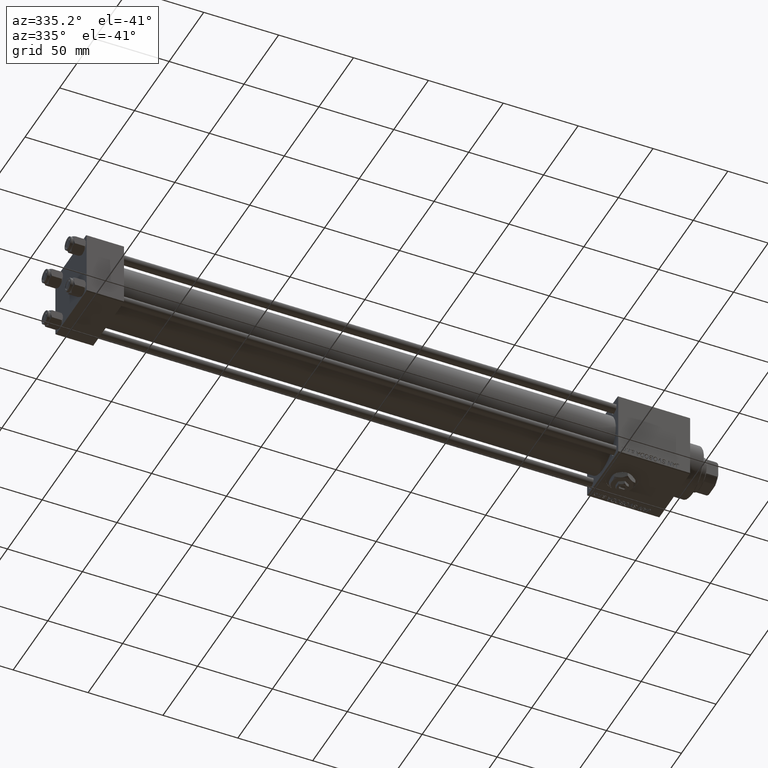
[diagram: clean part render]
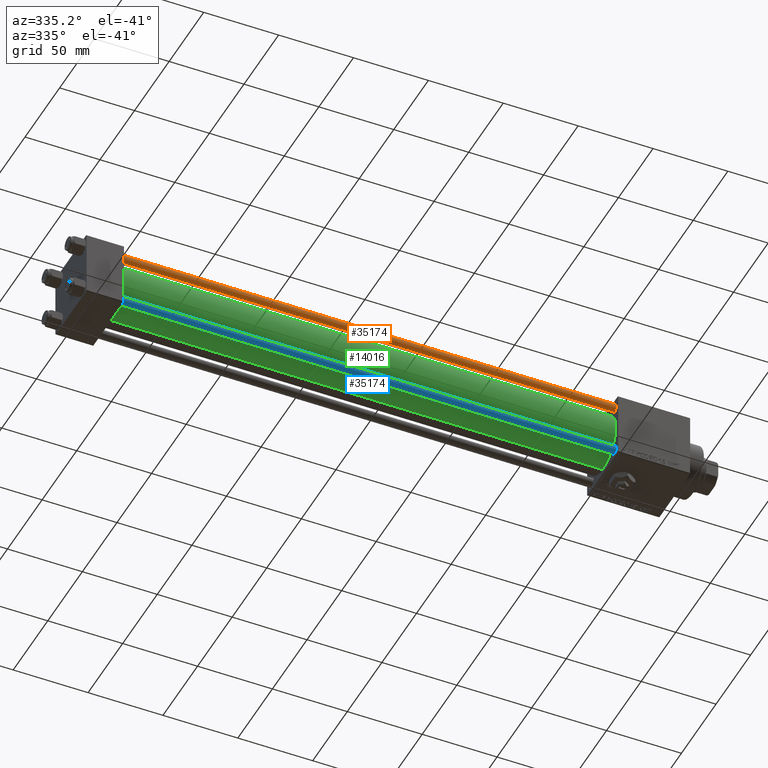
[diagram: same view with three faces highlighted in distinct colors, each labeled with its STEP entity id]
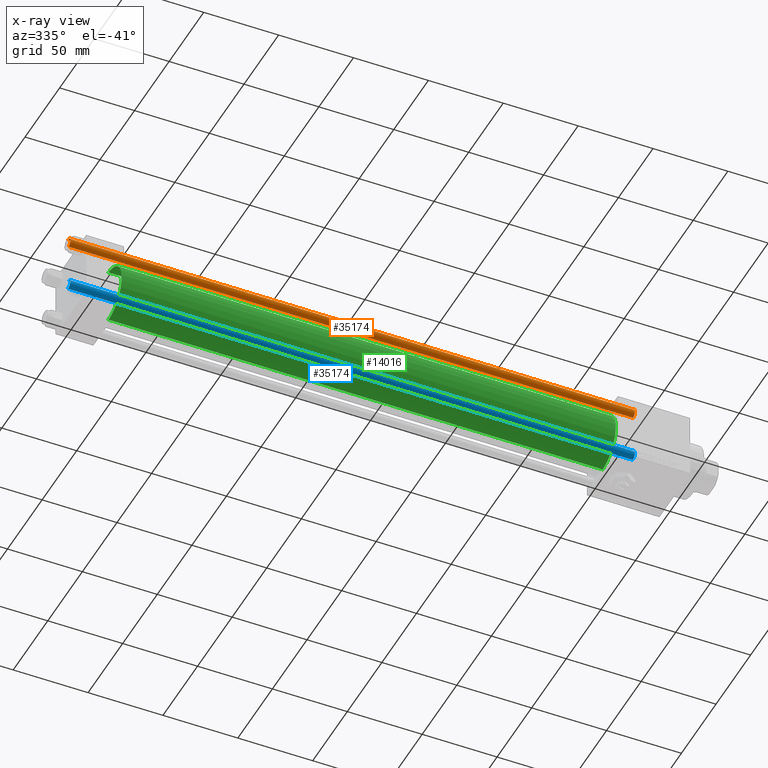
[diagram: x-ray of the same camera — body ghosted, the three highlighted faces saturated]
A machine part, auxiliary view with three faces highlighted in distinct colors.
The next image is the same camera in x-ray (body ghosted, the three faces saturated) — at least one of them is partly hidden behind the body in this view.
Their STEP definitions:

[orange] entity #35174 — the highlighted cylindrical surface (edge-blend (fillet) strip) has radius 3 mm, axis along (1, 0, -0).
#162 = ORIENTED_EDGE ( 'NONE', *, *, #33673, .T. ) ;
#464 = DIRECTION ( 'NONE',  ( -0.000000000000000000, -0.000000000000000000, -1.000000000000000000 ) ) ;
#3389 = EDGE_CURVE ( 'NONE', #10815, #40683, #31391, .T. ) ;
#3448 = CARTESIAN_POINT ( 'NONE',  ( -3.000000000000000444, 0.000000000000000000, 377.5000000000000000 ) ) ;
#6646 = ORIENTED_EDGE ( 'NONE', *, *, #22114, .T. ) ;
#9624 = EDGE_CURVE ( 'NONE', #17522, #40683, #15132, .T. ) ;
#10815 = VERTEX_POINT ( 'NONE', #18515 ) ;
#10945 = DIRECTION ( 'NONE',  ( -0.000000000000000000, -0.000000000000000000, -1.000000000000000000 ) ) ;
#12536 = ORIENTED_EDGE ( 'NONE', *, *, #9624, .F. ) ;
#12786 = CARTESIAN_POINT ( 'NONE',  ( -3.000000000000000444, 0.000000000000000000, 0.5000000000000004441 ) ) ;
#13234 = DIRECTION ( 'NONE',  ( 1.000000000000000000, 0.000000000000000000, 0.000000000000000000 ) ) ;
#15132 = LINE ( 'NONE', #46871, #26043 ) ;
#16107 = VERTEX_POINT ( 'NONE', #50154 ) ;
#16583 = VECTOR ( 'NONE', #464, 1000.000000000000000 ) ;
#17522 = VERTEX_POINT ( 'NONE', #3448 ) ;
#18515 = CARTESIAN_POINT ( 'NONE',  ( 3.000000000000000444, 3.673940397442060361E-16, 0.5000000000000004441 ) ) ;
#19437 = DIRECTION ( 'NONE',  ( -0.000000000000000000, -0.000000000000000000, -1.000000000000000000 ) ) ;
#19547 = CARTESIAN_POINT ( 'NONE',  ( 0.000000000000000000, 0.000000000000000000, 0.5000000000000004441 ) ) ;
#22114 = EDGE_CURVE ( 'NONE', #17522, #16107, #33904, .T. ) ;
#22603 = CARTESIAN_POINT ( 'NONE',  ( 0.000000000000000000, 0.000000000000000000, 378.0000000000000000 ) ) ;
#26043 = VECTOR ( 'NONE', #10945, 1000.000000000000000 ) ;
#27056 = CYLINDRICAL_SURFACE ( 'NONE', #39247, 3.000000000000000444 ) ;
#31391 = CIRCLE ( 'NONE', #33913, 3.000000000000000444 ) ;
#32132 = DIRECTION ( 'NONE',  ( 1.000000000000000000, 0.000000000000000000, 0.000000000000000000 ) ) ;
#33175 = CARTESIAN_POINT ( 'NONE',  ( 0.000000000000000000, 0.000000000000000000, 377.5000000000000000 ) ) ;
#33673 = EDGE_CURVE ( 'NONE', #16107, #10815, #39369, .T. ) ;
#33904 = CIRCLE ( 'NONE', #36418, 3.000000000000000444 ) ;
#33913 = AXIS2_PLACEMENT_3D ( 'NONE', #19547, #35552, #32132 ) ;
#35174 = ADVANCED_FACE ( 'NONE', ( #46970 ), #27056, .T. ) ;
#35552 = DIRECTION ( 'NONE',  ( -0.000000000000000000, -0.000000000000000000, 1.000000000000000000 ) ) ;
#36412 = CARTESIAN_POINT ( 'NONE',  ( 3.000000000000000444, 3.673940397442060361E-16, 378.0000000000000000 ) ) ;
#36418 = AXIS2_PLACEMENT_3D ( 'NONE', #33175, #37106, #13234 ) ;
#37106 = DIRECTION ( 'NONE',  ( 0.000000000000000000, 0.000000000000000000, -1.000000000000000000 ) ) ;
#37621 = ORIENTED_EDGE ( 'NONE', *, *, #3389, .T. ) ;
#37959 = EDGE_LOOP ( 'NONE', ( #6646, #162, #37621, #12536 ) ) ;
#39247 = AXIS2_PLACEMENT_3D ( 'NONE', #22603, #19437, #43047 ) ;
#39369 = LINE ( 'NONE', #36412, #16583 ) ;
#40683 = VERTEX_POINT ( 'NONE', #12786 ) ;
#43047 = DIRECTION ( 'NONE',  ( -1.000000000000000000, 0.000000000000000000, 0.000000000000000000 ) ) ;
#46871 = CARTESIAN_POINT ( 'NONE',  ( -3.000000000000000444, 0.000000000000000000, 378.0000000000000000 ) ) ;
#46970 = FACE_OUTER_BOUND ( 'NONE', #37959, .T. ) ;
#50154 = CARTESIAN_POINT ( 'NONE',  ( 3.000000000000000444, 3.673940397442060361E-16, 377.5000000000000000 ) ) ;

[blue] entity #35174 — the highlighted cylindrical surface (edge-blend (fillet) strip) has radius 3 mm, axis along (-1, -0, -0).
#162 = ORIENTED_EDGE ( 'NONE', *, *, #33673, .T. ) ;
#464 = DIRECTION ( 'NONE',  ( -0.000000000000000000, -0.000000000000000000, -1.000000000000000000 ) ) ;
#3389 = EDGE_CURVE ( 'NONE', #10815, #40683, #31391, .T. ) ;
#3448 = CARTESIAN_POINT ( 'NONE',  ( -3.000000000000000444, 0.000000000000000000, 377.5000000000000000 ) ) ;
#6646 = ORIENTED_EDGE ( 'NONE', *, *, #22114, .T. ) ;
#9624 = EDGE_CURVE ( 'NONE', #17522, #40683, #15132, .T. ) ;
#10815 = VERTEX_POINT ( 'NONE', #18515 ) ;
#10945 = DIRECTION ( 'NONE',  ( -0.000000000000000000, -0.000000000000000000, -1.000000000000000000 ) ) ;
#12536 = ORIENTED_EDGE ( 'NONE', *, *, #9624, .F. ) ;
#12786 = CARTESIAN_POINT ( 'NONE',  ( -3.000000000000000444, 0.000000000000000000, 0.5000000000000004441 ) ) ;
#13234 = DIRECTION ( 'NONE',  ( 1.000000000000000000, 0.000000000000000000, 0.000000000000000000 ) ) ;
#15132 = LINE ( 'NONE', #46871, #26043 ) ;
#16107 = VERTEX_POINT ( 'NONE', #50154 ) ;
#16583 = VECTOR ( 'NONE', #464, 1000.000000000000000 ) ;
#17522 = VERTEX_POINT ( 'NONE', #3448 ) ;
#18515 = CARTESIAN_POINT ( 'NONE',  ( 3.000000000000000444, 3.673940397442060361E-16, 0.5000000000000004441 ) ) ;
#19437 = DIRECTION ( 'NONE',  ( -0.000000000000000000, -0.000000000000000000, -1.000000000000000000 ) ) ;
#19547 = CARTESIAN_POINT ( 'NONE',  ( 0.000000000000000000, 0.000000000000000000, 0.5000000000000004441 ) ) ;
#22114 = EDGE_CURVE ( 'NONE', #17522, #16107, #33904, .T. ) ;
#22603 = CARTESIAN_POINT ( 'NONE',  ( 0.000000000000000000, 0.000000000000000000, 378.0000000000000000 ) ) ;
#26043 = VECTOR ( 'NONE', #10945, 1000.000000000000000 ) ;
#27056 = CYLINDRICAL_SURFACE ( 'NONE', #39247, 3.000000000000000444 ) ;
#31391 = CIRCLE ( 'NONE', #33913, 3.000000000000000444 ) ;
#32132 = DIRECTION ( 'NONE',  ( 1.000000000000000000, 0.000000000000000000, 0.000000000000000000 ) ) ;
#33175 = CARTESIAN_POINT ( 'NONE',  ( 0.000000000000000000, 0.000000000000000000, 377.5000000000000000 ) ) ;
#33673 = EDGE_CURVE ( 'NONE', #16107, #10815, #39369, .T. ) ;
#33904 = CIRCLE ( 'NONE', #36418, 3.000000000000000444 ) ;
#33913 = AXIS2_PLACEMENT_3D ( 'NONE', #19547, #35552, #32132 ) ;
#35174 = ADVANCED_FACE ( 'NONE', ( #46970 ), #27056, .T. ) ;
#35552 = DIRECTION ( 'NONE',  ( -0.000000000000000000, -0.000000000000000000, 1.000000000000000000 ) ) ;
#36412 = CARTESIAN_POINT ( 'NONE',  ( 3.000000000000000444, 3.673940397442060361E-16, 378.0000000000000000 ) ) ;
#36418 = AXIS2_PLACEMENT_3D ( 'NONE', #33175, #37106, #13234 ) ;
#37106 = DIRECTION ( 'NONE',  ( 0.000000000000000000, 0.000000000000000000, -1.000000000000000000 ) ) ;
#37621 = ORIENTED_EDGE ( 'NONE', *, *, #3389, .T. ) ;
#37959 = EDGE_LOOP ( 'NONE', ( #6646, #162, #37621, #12536 ) ) ;
#39247 = AXIS2_PLACEMENT_3D ( 'NONE', #22603, #19437, #43047 ) ;
#39369 = LINE ( 'NONE', #36412, #16583 ) ;
#40683 = VERTEX_POINT ( 'NONE', #12786 ) ;
#43047 = DIRECTION ( 'NONE',  ( -1.000000000000000000, 0.000000000000000000, 0.000000000000000000 ) ) ;
#46871 = CARTESIAN_POINT ( 'NONE',  ( -3.000000000000000444, 0.000000000000000000, 378.0000000000000000 ) ) ;
#46970 = FACE_OUTER_BOUND ( 'NONE', #37959, .T. ) ;
#50154 = CARTESIAN_POINT ( 'NONE',  ( 3.000000000000000444, 3.673940397442060361E-16, 377.5000000000000000 ) ) ;

[green] entity #14016 — the highlighted cylindrical surface (edge-blend (fillet) strip) has radius 19 mm, axis along (-1, -0, -0).
#908 = EDGE_CURVE ( 'NONE', #39248, #35603, #34329, .T. ) ;
#1378 = CIRCLE ( 'NONE', #24882, 19.00000000000000000 ) ;
#2216 = DIRECTION ( 'NONE',  ( 0.000000000000000000, 0.000000000000000000, -1.000000000000000000 ) ) ;
#2938 = ORIENTED_EDGE ( 'NONE', *, *, #908, .T. ) ;
#5012 = EDGE_CURVE ( 'NONE', #50965, #28946, #46306, .T. ) ;
#5890 = CARTESIAN_POINT ( 'NONE',  ( 355.0000000000000568, -2.602085213965210642E-15, 0.000000000000000000 ) ) ;
#11317 = DIRECTION ( 'NONE',  ( -1.000000000000000000, -0.000000000000000000, -0.000000000000000000 ) ) ;
#14016 = ADVANCED_FACE ( 'NONE', ( #15241 ), #31254, .T. ) ;
#15241 = FACE_OUTER_BOUND ( 'NONE', #50008, .T. ) ;
#19194 = CARTESIAN_POINT ( 'NONE',  ( 355.0000000000000568, -2.752562955852396712E-16, -19.00000000000000000 ) ) ;
#21501 = ORIENTED_EDGE ( 'NONE', *, *, #50585, .F. ) ;
#21933 = DIRECTION ( 'NONE',  ( -1.000000000000000000, -0.000000000000000000, -0.000000000000000000 ) ) ;
#24882 = AXIS2_PLACEMENT_3D ( 'NONE', #33025, #34574, #50546 ) ;
#25564 = CIRCLE ( 'NONE', #39800, 19.00000000000000000 ) ;
#27327 = DIRECTION ( 'NONE',  ( 0.000000000000000000, 0.000000000000000000, 1.000000000000000000 ) ) ;
#27744 = EDGE_CURVE ( 'NONE', #35603, #28946, #1378, .T. ) ;
#28946 = VERTEX_POINT ( 'NONE', #30844 ) ;
#29783 = DIRECTION ( 'NONE',  ( 1.000000000000000000, 0.000000000000000000, 0.000000000000000000 ) ) ;
#30383 = DIRECTION ( 'NONE',  ( -1.000000000000000000, -0.000000000000000000, -0.000000000000000000 ) ) ;
#30844 = CARTESIAN_POINT ( 'NONE',  ( 25.00000000000002132, -2.752562955852396712E-16, -19.00000000000000000 ) ) ;
#31254 = CYLINDRICAL_SURFACE ( 'NONE', #43774, 19.00000000000000000 ) ;
#33025 = CARTESIAN_POINT ( 'NONE',  ( 25.00000000000002132, -2.602085213965210642E-15, 0.000000000000000000 ) ) ;
#34329 = LINE ( 'NONE', #38779, #37202 ) ;
#34574 = DIRECTION ( 'NONE',  ( 1.000000000000000000, -0.000000000000000000, 0.000000000000000000 ) ) ;
#35032 = ORIENTED_EDGE ( 'NONE', *, *, #27744, .T. ) ;
#35603 = VERTEX_POINT ( 'NONE', #45465 ) ;
#37202 = VECTOR ( 'NONE', #30383, 1000.000000000000000 ) ;
#38779 = CARTESIAN_POINT ( 'NONE',  ( 355.0000000000000568, -2.602085213965210642E-15, 19.00000000000000000 ) ) ;
#38996 = VECTOR ( 'NONE', #21933, 1000.000000000000000 ) ;
#39248 = VERTEX_POINT ( 'NONE', #42756 ) ;
#39800 = AXIS2_PLACEMENT_3D ( 'NONE', #5890, #29783, #2216 ) ;
#41867 = CARTESIAN_POINT ( 'NONE',  ( 355.0000000000000568, -2.752562955852396712E-16, -19.00000000000000000 ) ) ;
#42756 = CARTESIAN_POINT ( 'NONE',  ( 355.0000000000000568, -2.602085213965210642E-15, 19.00000000000000000 ) ) ;
#43774 = AXIS2_PLACEMENT_3D ( 'NONE', #47240, #11317, #27327 ) ;
#45465 = CARTESIAN_POINT ( 'NONE',  ( 25.00000000000002132, -2.602085213965210642E-15, 19.00000000000000000 ) ) ;
#45751 = ORIENTED_EDGE ( 'NONE', *, *, #5012, .F. ) ;
#46306 = LINE ( 'NONE', #41867, #38996 ) ;
#47240 = CARTESIAN_POINT ( 'NONE',  ( 355.0000000000000568, -2.602085213965210642E-15, 0.000000000000000000 ) ) ;
#50008 = EDGE_LOOP ( 'NONE', ( #45751, #21501, #2938, #35032 ) ) ;
#50546 = DIRECTION ( 'NONE',  ( 0.000000000000000000, 0.000000000000000000, 1.000000000000000000 ) ) ;
#50585 = EDGE_CURVE ( 'NONE', #39248, #50965, #25564, .T. ) ;
#50965 = VERTEX_POINT ( 'NONE', #19194 ) ;